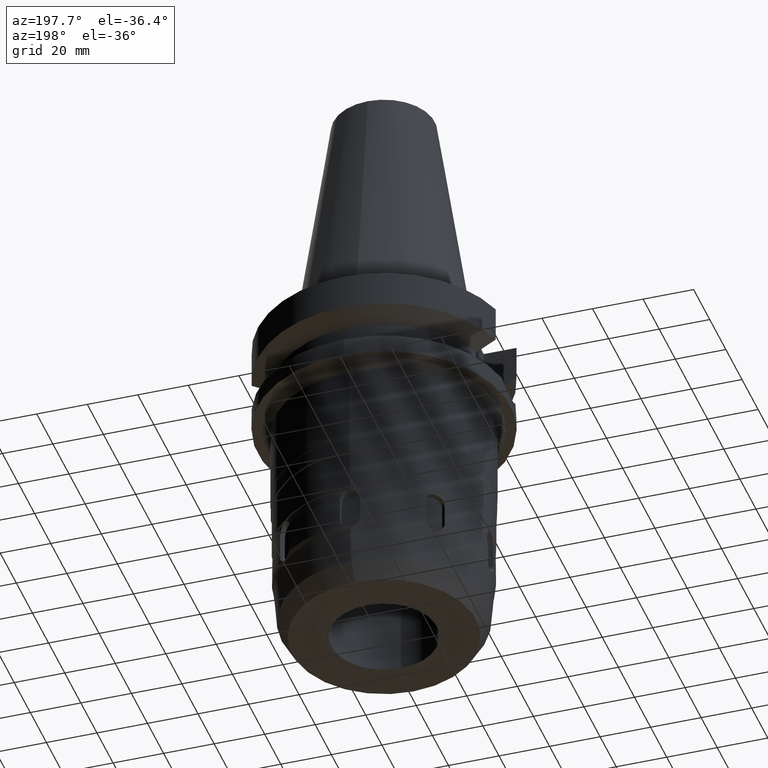
[diagram: clean part render]
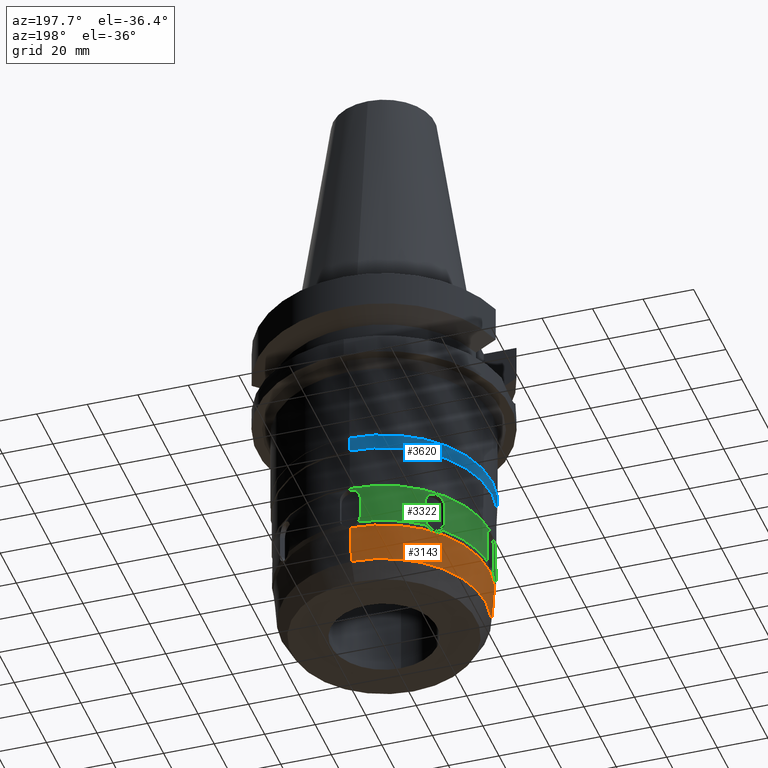
[diagram: same view with three faces highlighted in distinct colors, each labeled with its STEP entity id]
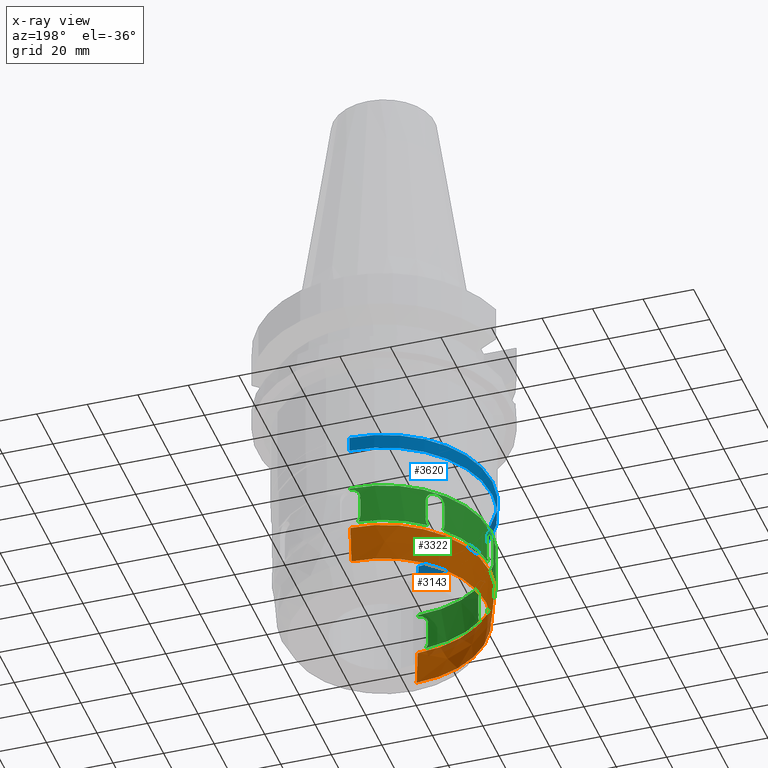
[diagram: x-ray of the same camera — body ghosted, the three highlighted faces saturated]
A machine part, auxiliary view with three faces highlighted in distinct colors.
The next image is the same camera in x-ray (body ghosted, the three faces saturated) — at least one of them is partly hidden behind the body in this view.
Their STEP definitions:

[orange] entity #3143 — the highlighted conical surface has half-angle 5 deg.
#316=DIRECTION('',(0.E0,8.715574274746E-2,-9.961946980918E-1));
#317=VECTOR('',#316,1.483087674628E1);
#318=CARTESIAN_POINT('',(-6.073135769353E-14,-4.174744542236E1,
-1.133755592173E2));
#319=LINE('',#318,#317);
#323=CARTESIAN_POINT('',(0.E0,0.E0,-1.2815E2));
#324=DIRECTION('',(0.E0,0.E0,-1.E0));
#325=DIRECTION('',(0.E0,-1.E0,0.E0));
#326=AXIS2_PLACEMENT_3D('',#323,#324,#325);
#331=DIRECTION('',(0.E0,-8.715574274746E-2,-9.961946980918E-1));
#332=VECTOR('',#331,1.483087674628E1);
#333=CARTESIAN_POINT('',(0.E0,4.174744542236E1,-1.133755592173E2));
#334=LINE('',#333,#332);
#539=CARTESIAN_POINT('',(0.E0,0.E0,-1.133755592173E2));
#540=DIRECTION('',(0.E0,0.E0,-1.E0));
#541=DIRECTION('',(0.E0,-1.E0,0.E0));
#542=AXIS2_PLACEMENT_3D('',#539,#540,#541);
#2526=CARTESIAN_POINT('',(0.E0,4.045484934395E1,-1.2815E2));
#2527=VERTEX_POINT('',#2526);
#2528=CARTESIAN_POINT('',(0.E0,-4.045484934395E1,-1.2815E2));
#2529=VERTEX_POINT('',#2528);
#2530=CARTESIAN_POINT('',(0.E0,4.174744542236E1,-1.133755592173E2));
#2531=VERTEX_POINT('',#2530);
#2532=CARTESIAN_POINT('',(-1.163501278462E-13,-4.174744542236E1,
-1.133755592173E2));
#2533=VERTEX_POINT('',#2532);
#3129=CARTESIAN_POINT('',(0.E0,0.E0,-1.207627796086E2));
#3130=DIRECTION('',(0.E0,0.E0,1.E0));
#3131=DIRECTION('',(0.E0,1.E0,0.E0));
#3132=AXIS2_PLACEMENT_3D('',#3129,#3130,#3131);
#3133=CONICAL_SURFACE('',#3132,4.110114738316E1,5.E0);
#3135=ORIENTED_EDGE('',*,*,#3134,.F.);
#3137=ORIENTED_EDGE('',*,*,#3136,.F.);
#3139=ORIENTED_EDGE('',*,*,#3138,.T.);
#3140=ORIENTED_EDGE('',*,*,#3122,.T.);
#3141=EDGE_LOOP('',(#3135,#3137,#3139,#3140));
#3142=FACE_OUTER_BOUND('',#3141,.F.);
#327=CIRCLE('',#326,4.045484934395E1);
#543=CIRCLE('',#542,4.174744542236E1);
#3122=EDGE_CURVE('',#2529,#2527,#327,.T.);
#3134=EDGE_CURVE('',#2531,#2527,#334,.T.);
#3136=EDGE_CURVE('',#2533,#2531,#543,.T.);
#3138=EDGE_CURVE('',#2533,#2529,#319,.T.);
#3143=ADVANCED_FACE('',(#3142),#3133,.T.);

[blue] entity #3620 — the highlighted cylindrical surface (partial cylindrical patch) has radius 42.85 mm, axis along (0, 0, -1).
#1291=CARTESIAN_POINT('',(0.E0,0.E0,-7.8E1));
#1292=DIRECTION('',(0.E0,0.E0,1.E0));
#1293=DIRECTION('',(0.E0,1.E0,0.E0));
#1294=AXIS2_PLACEMENT_3D('',#1291,#1292,#1293);
#1314=DIRECTION('',(0.E0,0.E0,-1.E0));
#1315=VECTOR('',#1314,6.E0);
#1316=CARTESIAN_POINT('',(0.E0,-4.285E1,-7.2E1));
#1317=LINE('',#1316,#1315);
#1321=DIRECTION('',(0.E0,0.E0,-1.E0));
#1322=VECTOR('',#1321,6.E0);
#1323=CARTESIAN_POINT('',(0.E0,4.285E1,-7.2E1));
#1324=LINE('',#1323,#1322);
#1344=CARTESIAN_POINT('',(0.E0,2.616335421698E-14,-7.2E1));
#1345=DIRECTION('',(0.E0,0.E0,-1.E0));
#1346=DIRECTION('',(0.E0,-1.E0,0.E0));
#1347=AXIS2_PLACEMENT_3D('',#1344,#1345,#1346);
#2656=CARTESIAN_POINT('',(0.E0,4.285E1,-7.8E1));
#2657=VERTEX_POINT('',#2656);
#2658=CARTESIAN_POINT('',(0.E0,-4.285E1,-7.8E1));
#2659=VERTEX_POINT('',#2658);
#2660=CARTESIAN_POINT('',(0.E0,4.285E1,-7.2E1));
#2661=VERTEX_POINT('',#2660);
#2662=CARTESIAN_POINT('',(0.E0,-4.285E1,-7.2E1));
#2663=VERTEX_POINT('',#2662);
#3606=CARTESIAN_POINT('',(0.E0,2.616335421698E-14,1.1364E2));
#3607=DIRECTION('',(0.E0,0.E0,-1.E0));
#3608=DIRECTION('',(0.E0,-1.E0,0.E0));
#3609=AXIS2_PLACEMENT_3D('',#3606,#3607,#3608);
#3610=CYLINDRICAL_SURFACE('',#3609,4.285E1);
#3612=ORIENTED_EDGE('',*,*,#3611,.F.);
#3614=ORIENTED_EDGE('',*,*,#3613,.F.);
#3616=ORIENTED_EDGE('',*,*,#3615,.T.);
#3617=ORIENTED_EDGE('',*,*,#3599,.F.);
#3618=EDGE_LOOP('',(#3612,#3614,#3616,#3617));
#3619=FACE_OUTER_BOUND('',#3618,.F.);
#1295=CIRCLE('',#1294,4.285E1);
#1348=CIRCLE('',#1347,4.285E1);
#3599=EDGE_CURVE('',#2657,#2659,#1295,.T.);
#3611=EDGE_CURVE('',#2661,#2657,#1324,.T.);
#3613=EDGE_CURVE('',#2663,#2661,#1348,.T.);
#3615=EDGE_CURVE('',#2663,#2659,#1317,.T.);
#3620=ADVANCED_FACE('',(#3619),#3610,.T.);

[green] entity #3322 — the highlighted cylindrical surface (partial cylindrical patch) has radius 42.25 mm, axis along (0, 0, -1).
#459=CARTESIAN_POINT('',(-2.758562032928E1,3.200150076244E1,-1.115E2));
#467=CARTESIAN_POINT('',(-3.200150076244E1,2.758562032928E1,-1.115E2));
#472=CARTESIAN_POINT('',(0.E0,0.E0,-1.115E2));
#473=DIRECTION('',(0.E0,0.E0,1.E0));
#474=DIRECTION('',(-7.574319707087E-1,6.529140906339E-1,0.E0));
#475=AXIS2_PLACEMENT_3D('',#472,#473,#474);
#488=CARTESIAN_POINT('',(-4.213445739534E1,-3.122498999199E0,-1.115E2));
#493=CARTESIAN_POINT('',(0.E0,0.E0,-1.115E2));
#494=DIRECTION('',(0.E0,0.E0,1.E0));
#495=DIRECTION('',(-9.972652637951E-1,-7.390530175620E-2,0.E0));
#496=AXIS2_PLACEMENT_3D('',#493,#494,#495);
#509=CARTESIAN_POINT('',(-2.758562032928E1,-3.200150076244E1,-1.115E2));
#514=CARTESIAN_POINT('',(0.E0,0.E0,-1.115E2));
#515=DIRECTION('',(0.E0,0.E0,1.E0));
#516=DIRECTION('',(-6.529140906339E-1,-7.574319707087E-1,0.E0));
#517=AXIS2_PLACEMENT_3D('',#514,#515,#516);
#522=CARTESIAN_POINT('',(-3.122498999199E0,-4.213445739534E1,-1.115E2));
#553=CARTESIAN_POINT('',(-3.122498999199E0,4.213445739534E1,-1.115E2));
#558=CARTESIAN_POINT('',(0.E0,0.E0,-1.115E2));
#559=DIRECTION('',(0.E0,0.E0,1.E0));
#560=DIRECTION('',(-7.390530175620E-2,9.972652637951E-1,0.E0));
#561=AXIS2_PLACEMENT_3D('',#558,#559,#560);
#580=DIRECTION('',(0.E0,0.E0,1.E0));
#581=VECTOR('',#580,9.E0);
#582=CARTESIAN_POINT('',(-3.256949721309E1,2.691264296360E1,-1.09E2));
#583=LINE('',#582,#581);
#587=CARTESIAN_POINT('',(-3.256949721309E1,2.691264296360E1,-1.E2));
#588=CARTESIAN_POINT('',(-3.256949721309E1,2.691264296360E1,-9.964409698214E1));
#589=CARTESIAN_POINT('',(-3.251121074561E1,2.698341721106E1,-9.895868401947E1));
#590=CARTESIAN_POINT('',(-3.225089221592E1,2.729531314118E1,-9.797607877694E1));
#591=CARTESIAN_POINT('',(-3.183129095038E1,2.778516096256E1,-9.713988907524E1));
#592=CARTESIAN_POINT('',(-3.127509567865E1,2.841154192981E1,-9.649637699382E1));
#593=CARTESIAN_POINT('',(-3.060591576930E1,2.913215671050E1,-9.609142922813E1));
#594=CARTESIAN_POINT('',(-3.012709537166E1,2.962342774742E1,-9.599999902110E1));
#595=CARTESIAN_POINT('',(-2.987526155954E1,2.987526155954E1,-9.599999902110E1));
#600=CARTESIAN_POINT('',(-2.987526155954E1,2.987526155954E1,-9.599999902110E1));
#601=CARTESIAN_POINT('',(-2.962380292419E1,3.012672019489E1,-9.599999902110E1));
#602=CARTESIAN_POINT('',(-2.913315243023E1,3.060495691330E1,-9.609116144718E1));
#603=CARTESIAN_POINT('',(-2.841309161194E1,3.127368442395E1,-9.649524668896E1));
#604=CARTESIAN_POINT('',(-2.778671163388E1,3.182994085743E1,-9.713786446033E1));
#605=CARTESIAN_POINT('',(-2.729634384996E1,3.225002507111E1,-9.797367209656E1));
#606=CARTESIAN_POINT('',(-2.698371351361E1,3.251096709713E1,-9.895682959818E1));
#607=CARTESIAN_POINT('',(-2.691264296360E1,3.256949721309E1,-9.964336050913E1));
#608=CARTESIAN_POINT('',(-2.691264296360E1,3.256949721309E1,-1.E2));
#613=DIRECTION('',(0.E0,0.E0,-1.E0));
#614=VECTOR('',#613,9.E0);
#615=CARTESIAN_POINT('',(-2.691264296360E1,3.256949721309E1,-1.E2));
#616=LINE('',#615,#614);
#620=CARTESIAN_POINT('',(-2.691264296360E1,3.256949721309E1,-1.09E2));
#621=CARTESIAN_POINT('',(-2.691264296360E1,3.256949721309E1,-1.093046825584E2));
#622=CARTESIAN_POINT('',(-2.696478567028E1,3.252652800720E1,-1.098964971564E2));
#623=CARTESIAN_POINT('',(-2.719746124616E1,3.233279590752E1,-1.107563702982E2));
#624=CARTESIAN_POINT('',(-2.744057449250E1,3.212653175438E1,-1.112614746033E2));
#625=CARTESIAN_POINT('',(-2.758562032928E1,3.200150076244E1,-1.115E2));
#630=CARTESIAN_POINT('',(-3.122498999199E0,4.213445739534E1,-1.115E2));
#631=CARTESIAN_POINT('',(-3.313471059745E0,4.212030484408E1,-1.112614759728E2));
#632=CARTESIAN_POINT('',(-3.631227948438E0,4.209424869325E1,-1.107563738991E2));
#633=CARTESIAN_POINT('',(-3.932744439868E0,4.206671144544E1,-1.098965031732E2));
#634=CARTESIAN_POINT('',(-4.E0,4.206022467843E1,-1.093046851587E2));
#635=CARTESIAN_POINT('',(-4.E0,4.206022467843E1,-1.09E2));
#640=DIRECTION('',(0.E0,0.E0,1.E0));
#641=VECTOR('',#640,9.E0);
#642=CARTESIAN_POINT('',(-4.E0,4.206022467843E1,-1.09E2));
#643=LINE('',#642,#641);
#647=CARTESIAN_POINT('',(-4.E0,4.206022467843E1,-1.E2));
#648=CARTESIAN_POINT('',(-4.E0,4.206022467843E1,-9.964394877756E1));
#649=CARTESIAN_POINT('',(-3.908649407867E0,4.206906347860E1,-9.895836126879E1));
#650=CARTESIAN_POINT('',(-3.504066670929E0,4.210552992064E1,-9.797603901220E1));
#651=CARTESIAN_POINT('',(-2.861233566405E0,4.215518230330E1,-9.714013416222E1));
#652=CARTESIAN_POINT('',(-2.025461360980E0,4.220479398087E1,-9.649676146142E1));
#653=CARTESIAN_POINT('',(-1.042758512590E0,4.224118210472E1,-9.609157151879E1));
#654=CARTESIAN_POINT('',(-3.564239254625E-1,4.225E1,-9.6E1));
#655=CARTESIAN_POINT('',(-5.231449140437E-14,4.225E1,-9.6E1));
#660=DIRECTION('',(3.244916157843E-14,-4.736951571734E-14,-1.E0));
#661=VECTOR('',#660,7.5E-1);
#662=CARTESIAN_POINT('',(0.E0,-4.225E1,-9.525E1));
#663=LINE('',#662,#661);
#667=CARTESIAN_POINT('',(2.433687118382E-14,-4.225E1,-9.6E1));
#668=CARTESIAN_POINT('',(-3.559282484012E-1,-4.225E1,-9.6E1));
#669=CARTESIAN_POINT('',(-1.041497757961E0,-4.224120686202E1,
-9.609131690371E1));
#670=CARTESIAN_POINT('',(-2.023742293817E0,-4.220487570347E1,
-9.649581249003E1));
#671=CARTESIAN_POINT('',(-2.859709932593E0,-4.215528851656E1,
-9.713860621075E1));
#672=CARTESIAN_POINT('',(-3.503158581056E0,-4.210560851563E1,
-9.797437864160E1));
#673=CARTESIAN_POINT('',(-3.908421545414E0,-4.206908577731E1,
-9.895720799692E1));
#674=CARTESIAN_POINT('',(-4.E0,-4.206022467843E1,-9.964349976995E1));
#675=CARTESIAN_POINT('',(-4.E0,-4.206022467843E1,-1.E2));
#680=DIRECTION('',(0.E0,0.E0,-1.E0));
#681=VECTOR('',#680,9.E0);
#682=CARTESIAN_POINT('',(-4.E0,-4.206022467843E1,-1.E2));
#683=LINE('',#682,#681);
#687=CARTESIAN_POINT('',(-4.E0,-4.206022467843E1,-1.09E2));
#688=CARTESIAN_POINT('',(-4.E0,-4.206022467843E1,-1.093046825584E2));
#689=CARTESIAN_POINT('',(-3.932745721674E0,-4.206671132304E1,
-1.098964971563E2));
#690=CARTESIAN_POINT('',(-3.631229962743E0,-4.209424851914E1,
-1.107563702981E2));
#691=CARTESIAN_POINT('',(-3.313472156245E0,-4.212030476282E1,
-1.112614746033E2));
#692=CARTESIAN_POINT('',(-3.122498999199E0,-4.213445739534E1,-1.115E2));
#697=CARTESIAN_POINT('',(-2.758562032928E1,-3.200150076244E1,-1.115E2));
#698=CARTESIAN_POINT('',(-2.744057532532E1,-3.212653103648E1,
-1.112614759729E2));
#699=CARTESIAN_POINT('',(-2.719746279364E1,-3.233279460627E1,
-1.107563738993E2));
#700=CARTESIAN_POINT('',(-2.696478666321E1,-3.252652718738E1,
-1.098965031734E2));
#701=CARTESIAN_POINT('',(-2.691264296360E1,-3.256949721309E1,
-1.093046851587E2));
#702=CARTESIAN_POINT('',(-2.691264296360E1,-3.256949721309E1,-1.09E2));
#707=DIRECTION('',(0.E0,0.E0,1.E0));
#708=VECTOR('',#707,9.E0);
#709=CARTESIAN_POINT('',(-2.691264296360E1,-3.256949721309E1,-1.09E2));
#710=LINE('',#709,#708);
#714=CARTESIAN_POINT('',(-2.691264296360E1,-3.256949721309E1,-1.E2));
#715=CARTESIAN_POINT('',(-2.691264296360E1,-3.256949721309E1,
-9.964404974366E1));
#716=CARTESIAN_POINT('',(-2.698343696325E1,-3.251119447504E1,
-9.895856943694E1));
#717=CARTESIAN_POINT('',(-2.729536570710E1,-3.225084793826E1,
-9.797596149227E1));
#718=CARTESIAN_POINT('',(-2.778522118694E1,-3.183123821894E1,
-9.713981570041E1));
#719=CARTESIAN_POINT('',(-2.841157371707E1,-3.127506653819E1,
-9.649635661679E1));
#720=CARTESIAN_POINT('',(-2.913217907581E1,-3.060589430721E1,
-9.609142208410E1));
#721=CARTESIAN_POINT('',(-2.962343535969E1,-3.012708775940E1,
-9.599999902106E1));
#722=CARTESIAN_POINT('',(-2.987526155954E1,-2.987526155954E1,
-9.599999902106E1));
#727=CARTESIAN_POINT('',(-2.987526155954E1,-2.987526155954E1,
-9.599999902106E1));
#728=CARTESIAN_POINT('',(-3.012672078515E1,-2.962380233394E1,
-9.599999902106E1));
#729=CARTESIAN_POINT('',(-3.060495163312E1,-2.913315725316E1,
-9.609116562086E1));
#730=CARTESIAN_POINT('',(-3.127362064281E1,-2.841316107410E1,
-9.649520097488E1));
#731=CARTESIAN_POINT('',(-3.182986384822E1,-2.778679991948E1,
-9.713775303224E1));
#732=CARTESIAN_POINT('',(-3.224996221772E1,-2.729641840369E1,
-9.797350537512E1));
#733=CARTESIAN_POINT('',(-3.251094560136E1,-2.698373964543E1,
-9.895667511091E1));
#734=CARTESIAN_POINT('',(-3.256949721309E1,-2.691264296360E1,
-9.964329723590E1));
#735=CARTESIAN_POINT('',(-3.256949721309E1,-2.691264296360E1,-1.E2));
#740=DIRECTION('',(0.E0,0.E0,-1.E0));
#741=VECTOR('',#740,9.E0);
#742=CARTESIAN_POINT('',(-3.256949721309E1,-2.691264296360E1,-1.E2));
#743=LINE('',#742,#741);
#747=CARTESIAN_POINT('',(-3.256949721309E1,-2.691264296360E1,-1.09E2));
#748=CARTESIAN_POINT('',(-3.256949721309E1,-2.691264296360E1,
-1.093046825584E2));
#749=CARTESIAN_POINT('',(-3.252652800720E1,-2.696478567028E1,
-1.098964971564E2));
#750=CARTESIAN_POINT('',(-3.233279590752E1,-2.719746124616E1,
-1.107563702982E2));
#751=CARTESIAN_POINT('',(-3.212653175438E1,-2.744057449250E1,
-1.112614746033E2));
#752=CARTESIAN_POINT('',(-3.200150076244E1,-2.758562032928E1,-1.115E2));
#757=CARTESIAN_POINT('',(-4.213445739534E1,-3.122498999199E0,-1.115E2));
#758=CARTESIAN_POINT('',(-4.212030489318E1,-3.313470397244E0,
-1.112614768003E2));
#759=CARTESIAN_POINT('',(-4.209424836830E1,-3.631232604883E0,
-1.107563803305E2));
#760=CARTESIAN_POINT('',(-4.206670861135E1,-3.932774688095E0,
-1.098963851396E2));
#761=CARTESIAN_POINT('',(-4.206022467843E1,-4.E0,-1.093046340410E2));
#762=CARTESIAN_POINT('',(-4.206022467843E1,-4.E0,-1.09E2));
#767=DIRECTION('',(0.E0,0.E0,1.E0));
#768=VECTOR('',#767,9.E0);
#769=CARTESIAN_POINT('',(-4.206022467843E1,-4.E0,-1.09E2));
#770=LINE('',#769,#768);
#774=CARTESIAN_POINT('',(-4.206022467843E1,-4.E0,-1.E2));
#775=CARTESIAN_POINT('',(-4.206022467843E1,-4.E0,-9.964409486412E1));
#776=CARTESIAN_POINT('',(-4.206905493054E1,-3.908739721402E0,
-9.895867386286E1));
#777=CARTESIAN_POINT('',(-4.210552741613E1,-3.504103598738E0,
-9.797603537792E1));
#778=CARTESIAN_POINT('',(-4.215520204510E1,-2.860981251329E0,
-9.713982079985E1));
#779=CARTESIAN_POINT('',(-4.220483070959E1,-2.024746979961E0,
-9.649632416919E1));
#780=CARTESIAN_POINT('',(-4.224119803608E1,-1.042016762147E0,
-9.609140956880E1));
#781=CARTESIAN_POINT('',(-4.225000007694E1,-3.561106801721E-1,
-9.599999902112E1));
#782=CARTESIAN_POINT('',(-4.225000007694E1,3.399747524010E-14,
-9.599999902112E1));
#787=CARTESIAN_POINT('',(-4.225000007694E1,3.399747524010E-14,
-9.599999902112E1));
#788=CARTESIAN_POINT('',(-4.225000007694E1,3.556362039170E-1,
-9.599999902112E1));
#789=CARTESIAN_POINT('',(-4.224122093910E1,1.040761864316E0,-9.609117530432E1));
#790=CARTESIAN_POINT('',(-4.220492551998E1,2.022701688282E0,-9.649523160001E1));
#791=CARTESIAN_POINT('',(-4.215534541700E1,2.858902572053E0,-9.713778005650E1));
#792=CARTESIAN_POINT('',(-4.210564837153E1,3.502697924262E0,-9.797353098516E1));
#793=CARTESIAN_POINT('',(-4.206909538090E1,3.908324584920E0,-9.895668069026E1));
#794=CARTESIAN_POINT('',(-4.206022467843E1,4.E0,-9.964329874904E1));
#795=CARTESIAN_POINT('',(-4.206022467843E1,4.E0,-1.E2));
#800=DIRECTION('',(0.E0,0.E0,-1.E0));
#801=VECTOR('',#800,9.E0);
#802=CARTESIAN_POINT('',(-4.206022467843E1,4.E0,-1.E2));
#803=LINE('',#802,#801);
#807=CARTESIAN_POINT('',(-4.206022467843E1,4.E0,-1.09E2));
#808=CARTESIAN_POINT('',(-4.206022467843E1,4.E0,-1.093046337191E2));
#809=CARTESIAN_POINT('',(-4.206670861737E1,3.932774596856E0,-1.098963843824E2));
#810=CARTESIAN_POINT('',(-4.209424819308E1,3.631234587702E0,-1.107563760575E2));
#811=CARTESIAN_POINT('',(-4.212030480149E1,3.313471634437E0,-1.112614752550E2));
#812=CARTESIAN_POINT('',(-4.213445739534E1,3.122498999199E0,-1.115E2));
#817=CARTESIAN_POINT('',(-3.200150076244E1,2.758562032928E1,-1.115E2));
#818=CARTESIAN_POINT('',(-3.212653103648E1,2.744057532532E1,-1.112614759729E2));
#819=CARTESIAN_POINT('',(-3.233279460627E1,2.719746279364E1,-1.107563738993E2));
#820=CARTESIAN_POINT('',(-3.252652718738E1,2.696478666321E1,-1.098965031733E2));
#821=CARTESIAN_POINT('',(-3.256949721309E1,2.691264296360E1,-1.093046851587E2));
#822=CARTESIAN_POINT('',(-3.256949721309E1,2.691264296360E1,-1.09E2));
#921=DIRECTION('',(-4.473562971761E-14,5.684341886081E-14,-1.E0));
#922=VECTOR('',#921,7.5E-1);
#923=CARTESIAN_POINT('',(-1.876276911617E-14,4.225E1,-9.525E1));
#924=LINE('',#923,#922);
#1246=CARTESIAN_POINT('',(0.E0,0.E0,-9.525E1));
#1247=DIRECTION('',(0.E0,0.E0,-1.E0));
#1248=DIRECTION('',(0.E0,-1.E0,0.E0));
#1249=AXIS2_PLACEMENT_3D('',#1246,#1247,#1248);
#2548=VERTEX_POINT('',#522);
#2549=VERTEX_POINT('',#687);
#2558=VERTEX_POINT('',#459);
#2559=VERTEX_POINT('',#467);
#2560=CARTESIAN_POINT('',(-4.213445739534E1,3.122498999199E0,-1.115E2));
#2561=VERTEX_POINT('',#2560);
#2562=VERTEX_POINT('',#488);
#2563=CARTESIAN_POINT('',(-3.200150076244E1,-2.758562032928E1,-1.115E2));
#2564=VERTEX_POINT('',#2563);
#2565=VERTEX_POINT('',#509);
#2566=VERTEX_POINT('',#553);
#2567=VERTEX_POINT('',#620);
#2574=CARTESIAN_POINT('',(-3.256949721309E1,2.691264296360E1,-1.09E2));
#2575=VERTEX_POINT('',#2574);
#2576=CARTESIAN_POINT('',(-3.256949721309E1,2.691264296360E1,-1.E2));
#2577=VERTEX_POINT('',#2576);
#2578=VERTEX_POINT('',#600);
#2579=VERTEX_POINT('',#608);
#2580=VERTEX_POINT('',#635);
#2581=CARTESIAN_POINT('',(-4.E0,4.206022467843E1,-1.E2));
#2582=VERTEX_POINT('',#2581);
#2583=VERTEX_POINT('',#655);
#2584=CARTESIAN_POINT('',(-1.876276911617E-14,4.225E1,-9.525E1));
#2585=VERTEX_POINT('',#2584);
#2586=CARTESIAN_POINT('',(0.E0,-4.225E1,-9.525E1));
#2587=VERTEX_POINT('',#2586);
#2588=CARTESIAN_POINT('',(2.433687118382E-14,-4.225E1,-9.6E1));
#2589=VERTEX_POINT('',#2588);
#2590=VERTEX_POINT('',#675);
#2591=VERTEX_POINT('',#702);
#2592=CARTESIAN_POINT('',(-2.691264296360E1,-3.256949721309E1,-1.E2));
#2593=VERTEX_POINT('',#2592);
#2594=VERTEX_POINT('',#727);
#2595=VERTEX_POINT('',#735);
#2596=CARTESIAN_POINT('',(-3.256949721309E1,-2.691264296360E1,-1.09E2));
#2597=VERTEX_POINT('',#2596);
#2598=VERTEX_POINT('',#762);
#2599=CARTESIAN_POINT('',(-4.206022467843E1,-4.E0,-1.E2));
#2600=VERTEX_POINT('',#2599);
#2601=VERTEX_POINT('',#787);
#2602=VERTEX_POINT('',#795);
#2603=CARTESIAN_POINT('',(-4.206022467843E1,4.E0,-1.09E2));
#2604=VERTEX_POINT('',#2603);
#3260=CARTESIAN_POINT('',(0.E0,2.616335421698E-14,1.1364E2));
#3261=DIRECTION('',(0.E0,0.E0,-1.E0));
#3262=DIRECTION('',(0.E0,-1.E0,0.E0));
#3263=AXIS2_PLACEMENT_3D('',#3260,#3261,#3262);
#3264=CYLINDRICAL_SURFACE('',#3263,4.225E1);
#3266=ORIENTED_EDGE('',*,*,#3265,.T.);
#3268=ORIENTED_EDGE('',*,*,#3267,.T.);
#3270=ORIENTED_EDGE('',*,*,#3269,.T.);
#3272=ORIENTED_EDGE('',*,*,#3271,.T.);
#3273=ORIENTED_EDGE('',*,*,#3245,.T.);
#3274=ORIENTED_EDGE('',*,*,#3234,.F.);
#3276=ORIENTED_EDGE('',*,*,#3275,.T.);
#3278=ORIENTED_EDGE('',*,*,#3277,.T.);
#3280=ORIENTED_EDGE('',*,*,#3279,.T.);
#3282=ORIENTED_EDGE('',*,*,#3281,.F.);
#3284=ORIENTED_EDGE('',*,*,#3283,.F.);
#3286=ORIENTED_EDGE('',*,*,#3285,.T.);
#3288=ORIENTED_EDGE('',*,*,#3287,.T.);
#3290=ORIENTED_EDGE('',*,*,#3289,.T.);
#3291=ORIENTED_EDGE('',*,*,#3196,.T.);
#3292=ORIENTED_EDGE('',*,*,#3226,.F.);
#3294=ORIENTED_EDGE('',*,*,#3293,.T.);
#3296=ORIENTED_EDGE('',*,*,#3295,.T.);
#3298=ORIENTED_EDGE('',*,*,#3297,.T.);
#3300=ORIENTED_EDGE('',*,*,#3299,.T.);
#3302=ORIENTED_EDGE('',*,*,#3301,.T.);
#3304=ORIENTED_EDGE('',*,*,#3303,.T.);
#3305=ORIENTED_EDGE('',*,*,#3222,.F.);
#3307=ORIENTED_EDGE('',*,*,#3306,.T.);
#3309=ORIENTED_EDGE('',*,*,#3308,.T.);
#3311=ORIENTED_EDGE('',*,*,#3310,.T.);
#3313=ORIENTED_EDGE('',*,*,#3312,.T.);
#3315=ORIENTED_EDGE('',*,*,#3314,.T.);
#3317=ORIENTED_EDGE('',*,*,#3316,.T.);
#3318=ORIENTED_EDGE('',*,*,#3218,.F.);
#3319=ORIENTED_EDGE('',*,*,#3255,.T.);
#3320=EDGE_LOOP('',(#3266,#3268,#3270,#3272,#3273,#3274,#3276,#3278,#3280,#3282,
#3284,#3286,#3288,#3290,#3291,#3292,#3294,#3296,#3298,#3300,#3302,#3304,#3305,
#3307,#3309,#3311,#3313,#3315,#3317,#3318,#3319));
#3321=FACE_OUTER_BOUND('',#3320,.F.);
#476=CIRCLE('',#475,4.224999999999E1);
#497=CIRCLE('',#496,4.224999999999E1);
#518=CIRCLE('',#517,4.224999999999E1);
#562=CIRCLE('',#561,4.224999999999E1);
#596=B_SPLINE_CURVE_WITH_KNOTS('',3,(#587,#588,#589,#590,#591,#592,#593,#594,
#595),.UNSPECIFIED.,.F.,.F.,(4,1,1,1,1,1,4),(0.E0,1.666666666667E-1,
3.333333333333E-1,5.E-1,6.666666666667E-1,8.333333333333E-1,1.E0),
.UNSPECIFIED.);
#609=B_SPLINE_CURVE_WITH_KNOTS('',3,(#600,#601,#602,#603,#604,#605,#606,#607,
#608),.UNSPECIFIED.,.F.,.F.,(4,1,1,1,1,1,4),(0.E0,1.666666666667E-1,
3.333333333333E-1,5.E-1,6.666666666667E-1,8.333333333333E-1,1.E0),
.UNSPECIFIED.);
#626=B_SPLINE_CURVE_WITH_KNOTS('',3,(#620,#621,#622,#623,#624,#625),
.UNSPECIFIED.,.F.,.F.,(4,1,1,4),(0.E0,3.333333333333E-1,6.666666666667E-1,1.E0),
.UNSPECIFIED.);
#636=B_SPLINE_CURVE_WITH_KNOTS('',3,(#630,#631,#632,#633,#634,#635),
.UNSPECIFIED.,.F.,.F.,(4,1,1,4),(0.E0,3.333333333333E-1,6.666666666667E-1,1.E0),
.UNSPECIFIED.);
#656=B_SPLINE_CURVE_WITH_KNOTS('',3,(#647,#648,#649,#650,#651,#652,#653,#654,
#655),.UNSPECIFIED.,.F.,.F.,(4,1,1,1,1,1,4),(0.E0,1.666666666667E-1,
3.333333333333E-1,5.E-1,6.666666666667E-1,8.333333333333E-1,1.E0),
.UNSPECIFIED.);
#676=B_SPLINE_CURVE_WITH_KNOTS('',3,(#667,#668,#669,#670,#671,#672,#673,#674,
#675),.UNSPECIFIED.,.F.,.F.,(4,1,1,1,1,1,4),(0.E0,1.666666666667E-1,
3.333333333333E-1,5.E-1,6.666666666667E-1,8.333333333333E-1,1.E0),
.UNSPECIFIED.);
#693=B_SPLINE_CURVE_WITH_KNOTS('',3,(#687,#688,#689,#690,#691,#692),
.UNSPECIFIED.,.F.,.F.,(4,1,1,4),(0.E0,3.333333333333E-1,6.666666666667E-1,1.E0),
.UNSPECIFIED.);
#703=B_SPLINE_CURVE_WITH_KNOTS('',3,(#697,#698,#699,#700,#701,#702),
.UNSPECIFIED.,.F.,.F.,(4,1,1,4),(0.E0,3.333333333333E-1,6.666666666667E-1,1.E0),
.UNSPECIFIED.);
#723=B_SPLINE_CURVE_WITH_KNOTS('',3,(#714,#715,#716,#717,#718,#719,#720,#721,
#722),.UNSPECIFIED.,.F.,.F.,(4,1,1,1,1,1,4),(0.E0,1.666666666667E-1,
3.333333333333E-1,5.E-1,6.666666666667E-1,8.333333333333E-1,1.E0),
.UNSPECIFIED.);
#736=B_SPLINE_CURVE_WITH_KNOTS('',3,(#727,#728,#729,#730,#731,#732,#733,#734,
#735),.UNSPECIFIED.,.F.,.F.,(4,1,1,1,1,1,4),(0.E0,1.666666666667E-1,
3.333333333333E-1,5.E-1,6.666666666667E-1,8.333333333333E-1,1.E0),
.UNSPECIFIED.);
#753=B_SPLINE_CURVE_WITH_KNOTS('',3,(#747,#748,#749,#750,#751,#752),
.UNSPECIFIED.,.F.,.F.,(4,1,1,4),(0.E0,3.333333333333E-1,6.666666666667E-1,1.E0),
.UNSPECIFIED.);
#763=B_SPLINE_CURVE_WITH_KNOTS('',3,(#757,#758,#759,#760,#761,#762),
.UNSPECIFIED.,.F.,.F.,(4,1,1,4),(0.E0,3.333333333333E-1,6.666666666667E-1,1.E0),
.UNSPECIFIED.);
#783=B_SPLINE_CURVE_WITH_KNOTS('',3,(#774,#775,#776,#777,#778,#779,#780,#781,
#782),.UNSPECIFIED.,.F.,.F.,(4,1,1,1,1,1,4),(0.E0,1.666666666667E-1,
3.333333333333E-1,5.E-1,6.666666666667E-1,8.333333333333E-1,1.E0),
.UNSPECIFIED.);
#796=B_SPLINE_CURVE_WITH_KNOTS('',3,(#787,#788,#789,#790,#791,#792,#793,#794,
#795),.UNSPECIFIED.,.F.,.F.,(4,1,1,1,1,1,4),(0.E0,1.666666666667E-1,
3.333333333333E-1,5.E-1,6.666666666667E-1,8.333333333333E-1,1.E0),
.UNSPECIFIED.);
#813=B_SPLINE_CURVE_WITH_KNOTS('',3,(#807,#808,#809,#810,#811,#812),
.UNSPECIFIED.,.F.,.F.,(4,1,1,4),(0.E0,3.333333333333E-1,6.666666666667E-1,1.E0),
.UNSPECIFIED.);
#823=B_SPLINE_CURVE_WITH_KNOTS('',3,(#817,#818,#819,#820,#821,#822),
.UNSPECIFIED.,.F.,.F.,(4,1,1,4),(0.E0,3.333333333333E-1,6.666666666667E-1,1.E0),
.UNSPECIFIED.);
#1250=CIRCLE('',#1249,4.225E1);
#3196=EDGE_CURVE('',#2549,#2548,#693,.T.);
#3218=EDGE_CURVE('',#2559,#2561,#476,.T.);
#3222=EDGE_CURVE('',#2562,#2564,#497,.T.);
#3226=EDGE_CURVE('',#2565,#2548,#518,.T.);
#3234=EDGE_CURVE('',#2566,#2558,#562,.T.);
#3245=EDGE_CURVE('',#2567,#2558,#626,.T.);
#3255=EDGE_CURVE('',#2559,#2575,#823,.T.);
#3265=EDGE_CURVE('',#2575,#2577,#583,.T.);
#3267=EDGE_CURVE('',#2577,#2578,#596,.T.);
#3269=EDGE_CURVE('',#2578,#2579,#609,.T.);
#3271=EDGE_CURVE('',#2579,#2567,#616,.T.);
#3275=EDGE_CURVE('',#2566,#2580,#636,.T.);
#3277=EDGE_CURVE('',#2580,#2582,#643,.T.);
#3279=EDGE_CURVE('',#2582,#2583,#656,.T.);
#3281=EDGE_CURVE('',#2585,#2583,#924,.T.);
#3283=EDGE_CURVE('',#2587,#2585,#1250,.T.);
#3285=EDGE_CURVE('',#2587,#2589,#663,.T.);
#3287=EDGE_CURVE('',#2589,#2590,#676,.T.);
#3289=EDGE_CURVE('',#2590,#2549,#683,.T.);
#3293=EDGE_CURVE('',#2565,#2591,#703,.T.);
#3295=EDGE_CURVE('',#2591,#2593,#710,.T.);
#3297=EDGE_CURVE('',#2593,#2594,#723,.T.);
#3299=EDGE_CURVE('',#2594,#2595,#736,.T.);
#3301=EDGE_CURVE('',#2595,#2597,#743,.T.);
#3303=EDGE_CURVE('',#2597,#2564,#753,.T.);
#3306=EDGE_CURVE('',#2562,#2598,#763,.T.);
#3308=EDGE_CURVE('',#2598,#2600,#770,.T.);
#3310=EDGE_CURVE('',#2600,#2601,#783,.T.);
#3312=EDGE_CURVE('',#2601,#2602,#796,.T.);
#3314=EDGE_CURVE('',#2602,#2604,#803,.T.);
#3316=EDGE_CURVE('',#2604,#2561,#813,.T.);
#3322=ADVANCED_FACE('',(#3321),#3264,.T.);